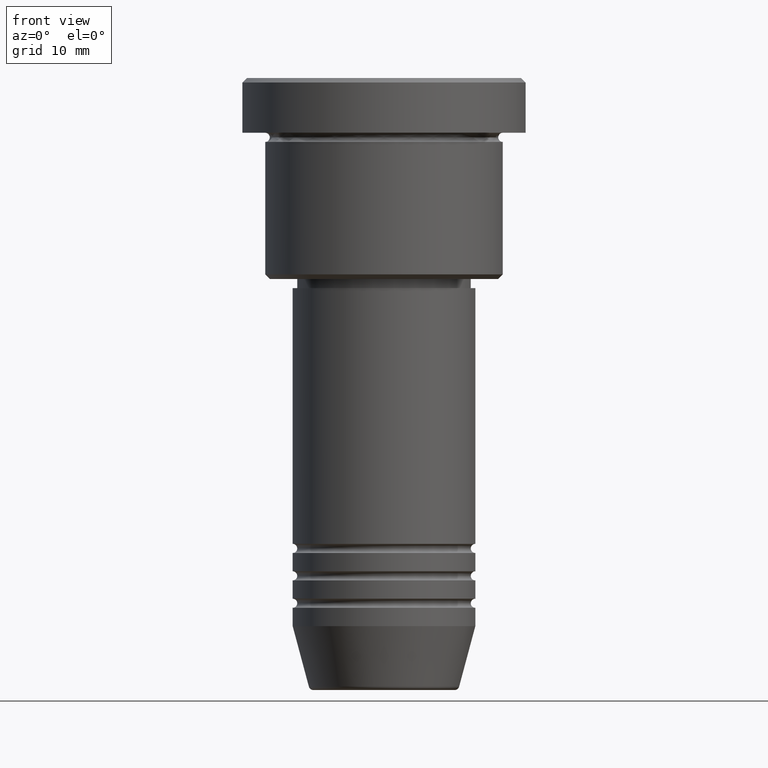
[diagram: clean part render]
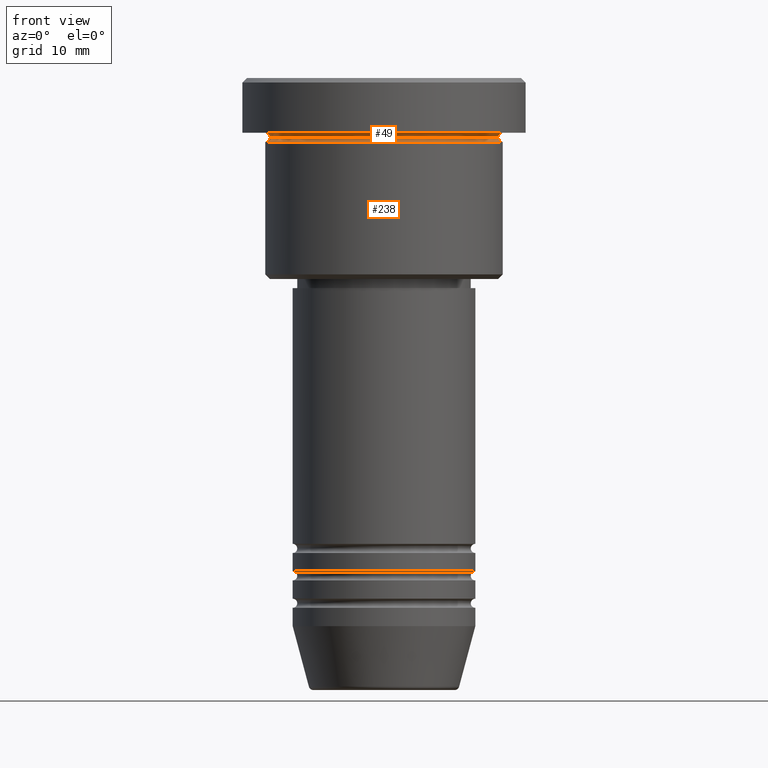
[diagram: same view with one multi-face feature highlighted, each face labeled with its STEP entity id]
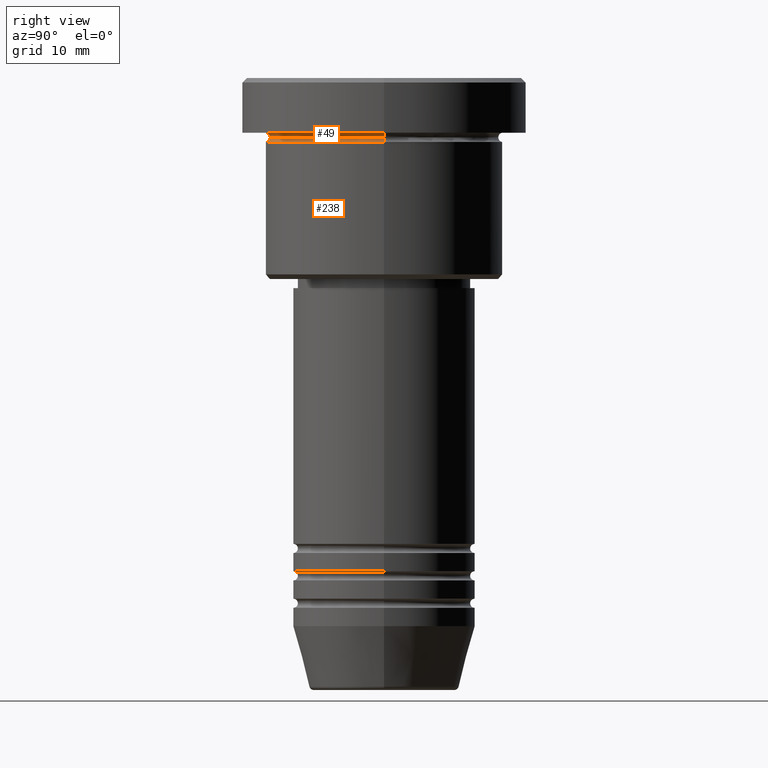
[diagram: same view with one multi-face feature highlighted, each face labeled with its STEP entity id]
A machine part, front view. The highlighted faces form ONE feature: a constant-radius fillet chain: 2 tangent blend faces with common blend radius 0.5 mm. The faces share edges in the B-rep.
A second angle (right view) of the same feature is appended — it is thin or edge-on in the first view.
Their STEP definitions:
[1] entity #49 (Torus):
#19 = CIRCLE ( 'NONE', #325, 0.5000000000000004441 ) ;
#30 = DIRECTION ( 'NONE',  ( -1.000000000000000000, 0.000000000000000000, 0.000000000000000000 ) ) ;
#41 = EDGE_CURVE ( 'NONE', #679, #348, #215, .T. ) ;
#49 = ADVANCED_FACE ( 'NONE', ( #750 ), #1029, .F. ) ;
#98 = DIRECTION ( 'NONE',  ( -0.000000000000000000, -0.000000000000000000, 1.000000000000000000 ) ) ;
#173 = DIRECTION ( 'NONE',  ( 1.000000000000000000, 0.000000000000000000, 0.000000000000000000 ) ) ;
#185 = DIRECTION ( 'NONE',  ( -1.224646799147353207E-16, 1.000000000000000000, 0.000000000000000000 ) ) ;
#194 = CARTESIAN_POINT ( 'NONE',  ( -13.00000000000000000, 0.000000000000000000, -5.999999999999994671 ) ) ;
#198 = CARTESIAN_POINT ( 'NONE',  ( 13.00000000000000000, 1.592040838891559095E-15, -6.499999999999995559 ) ) ;
#215 = CIRCLE ( 'NONE', #374, 0.5000000000000004441 ) ;
#226 = EDGE_LOOP ( 'NONE', ( #512, #853, #782, #830 ) ) ;
#241 = VERTEX_POINT ( 'NONE', #692 ) ;
#280 = DIRECTION ( 'NONE',  ( -1.000000000000000000, -1.224646799147353454E-16, 0.000000000000000000 ) ) ;
#288 = CIRCLE ( 'NONE', #514, 12.49999999999999822 ) ;
#292 = CARTESIAN_POINT ( 'NONE',  ( -12.49999999999999822, 1.561424668912875308E-15, -6.499999999999995559 ) ) ;
#317 = CARTESIAN_POINT ( 'NONE',  ( 0.000000000000000000, 0.000000000000000000, -6.499999999999995559 ) ) ;
#325 = AXIS2_PLACEMENT_3D ( 'NONE', #198, #185, #280 ) ;
#342 = VERTEX_POINT ( 'NONE', #921 ) ;
#348 = VERTEX_POINT ( 'NONE', #194 ) ;
#374 = AXIS2_PLACEMENT_3D ( 'NONE', #953, #594, #676 ) ;
#486 = EDGE_CURVE ( 'NONE', #679, #342, #288, .T. ) ;
#512 = ORIENTED_EDGE ( 'NONE', *, *, #486, .T. ) ;
#514 = AXIS2_PLACEMENT_3D ( 'NONE', #1000, #98, #173 ) ;
#530 = EDGE_CURVE ( 'NONE', #342, #241, #19, .T. ) ;
#594 = DIRECTION ( 'NONE',  ( -0.000000000000000000, -1.000000000000000000, -0.000000000000000000 ) ) ;
#598 = EDGE_CURVE ( 'NONE', #348, #241, #1123, .T. ) ;
#665 = AXIS2_PLACEMENT_3D ( 'NONE', #317, #670, #30 ) ;
#670 = DIRECTION ( 'NONE',  ( 0.000000000000000000, 0.000000000000000000, -1.000000000000000000 ) ) ;
#676 = DIRECTION ( 'NONE',  ( 0.000000000000000000, 0.000000000000000000, -1.000000000000000000 ) ) ;
#679 = VERTEX_POINT ( 'NONE', #292 ) ;
#692 = CARTESIAN_POINT ( 'NONE',  ( 13.00000000000000000, 1.592040838891559095E-15, -5.999999999999994671 ) ) ;
#725 = DIRECTION ( 'NONE',  ( -0.000000000000000000, -0.000000000000000000, 1.000000000000000000 ) ) ;
#731 = CARTESIAN_POINT ( 'NONE',  ( 0.000000000000000000, 0.000000000000000000, -5.999999999999995559 ) ) ;
#736 = DIRECTION ( 'NONE',  ( -1.000000000000000000, 0.000000000000000000, 0.000000000000000000 ) ) ;
#750 = FACE_OUTER_BOUND ( 'NONE', #226, .T. ) ;
#753 = AXIS2_PLACEMENT_3D ( 'NONE', #731, #725, #736 ) ;
#782 = ORIENTED_EDGE ( 'NONE', *, *, #598, .F. ) ;
#830 = ORIENTED_EDGE ( 'NONE', *, *, #41, .F. ) ;
#853 = ORIENTED_EDGE ( 'NONE', *, *, #530, .T. ) ;
#921 = CARTESIAN_POINT ( 'NONE',  ( 12.49999999999999822, 0.000000000000000000, -6.499999999999995559 ) ) ;
#953 = CARTESIAN_POINT ( 'NONE',  ( -13.00000000000000000, 0.000000000000000000, -6.499999999999995559 ) ) ;
#1000 = CARTESIAN_POINT ( 'NONE',  ( 0.000000000000000000, 0.000000000000000000, -6.499999999999995559 ) ) ;
#1029 = TOROIDAL_SURFACE ( 'NONE', #665, 13.00000000000000000, 0.5000000000000000000 ) ;
#1123 = CIRCLE ( 'NONE', #753, 13.00000000000000000 ) ;
[2] entity #238 (Torus):
#20 = CARTESIAN_POINT ( 'NONE',  ( 13.00000000000000000, 0.000000000000000000, -6.499999999999995559 ) ) ;
#47 = DIRECTION ( 'NONE',  ( -1.000000000000000000, 1.224646799147353454E-16, 0.000000000000000000 ) ) ;
#56 = FACE_OUTER_BOUND ( 'NONE', #388, .T. ) ;
#57 = AXIS2_PLACEMENT_3D ( 'NONE', #258, #976, #163 ) ;
#89 = VERTEX_POINT ( 'NONE', #580 ) ;
#98 = DIRECTION ( 'NONE',  ( -0.000000000000000000, -0.000000000000000000, 1.000000000000000000 ) ) ;
#99 = DIRECTION ( 'NONE',  ( 0.000000000000000000, 0.000000000000000000, -1.000000000000000000 ) ) ;
#163 = DIRECTION ( 'NONE',  ( 1.000000000000000000, 0.000000000000000000, 0.000000000000000000 ) ) ;
#173 = DIRECTION ( 'NONE',  ( 1.000000000000000000, 0.000000000000000000, 0.000000000000000000 ) ) ;
#190 = CIRCLE ( 'NONE', #640, 0.5000000000000004441 ) ;
#212 = AXIS2_PLACEMENT_3D ( 'NONE', #663, #413, #1128 ) ;
#238 = ADVANCED_FACE ( 'NONE', ( #56 ), #990, .F. ) ;
#258 = CARTESIAN_POINT ( 'NONE',  ( 0.000000000000000000, 0.000000000000000000, -6.499999999999995559 ) ) ;
#273 = CARTESIAN_POINT ( 'NONE',  ( -13.00000000000000000, 1.592040838891559095E-15, -6.999999999999995559 ) ) ;
#286 = EDGE_CURVE ( 'NONE', #342, #89, #190, .T. ) ;
#288 = CIRCLE ( 'NONE', #514, 12.49999999999999822 ) ;
#292 = CARTESIAN_POINT ( 'NONE',  ( -12.49999999999999822, 1.561424668912875308E-15, -6.499999999999995559 ) ) ;
#342 = VERTEX_POINT ( 'NONE', #921 ) ;
#376 = EDGE_CURVE ( 'NONE', #506, #89, #796, .T. ) ;
#382 = CIRCLE ( 'NONE', #733, 0.5000000000000004441 ) ;
#388 = EDGE_LOOP ( 'NONE', ( #755, #691, #974, #443 ) ) ;
#413 = DIRECTION ( 'NONE',  ( -0.000000000000000000, -0.000000000000000000, 1.000000000000000000 ) ) ;
#425 = DIRECTION ( 'NONE',  ( 1.224646799147353207E-16, 1.000000000000000000, 0.000000000000000000 ) ) ;
#443 = ORIENTED_EDGE ( 'NONE', *, *, #286, .F. ) ;
#486 = EDGE_CURVE ( 'NONE', #679, #342, #288, .T. ) ;
#506 = VERTEX_POINT ( 'NONE', #273 ) ;
#514 = AXIS2_PLACEMENT_3D ( 'NONE', #1000, #98, #173 ) ;
#580 = CARTESIAN_POINT ( 'NONE',  ( 13.00000000000000000, 0.000000000000000000, -6.999999999999995559 ) ) ;
#640 = AXIS2_PLACEMENT_3D ( 'NONE', #20, #822, #99 ) ;
#663 = CARTESIAN_POINT ( 'NONE',  ( 0.000000000000000000, 0.000000000000000000, -6.999999999999995559 ) ) ;
#679 = VERTEX_POINT ( 'NONE', #292 ) ;
#691 = ORIENTED_EDGE ( 'NONE', *, *, #793, .T. ) ;
#733 = AXIS2_PLACEMENT_3D ( 'NONE', #1067, #425, #47 ) ;
#755 = ORIENTED_EDGE ( 'NONE', *, *, #486, .F. ) ;
#793 = EDGE_CURVE ( 'NONE', #679, #506, #382, .T. ) ;
#796 = CIRCLE ( 'NONE', #212, 13.00000000000000000 ) ;
#822 = DIRECTION ( 'NONE',  ( 0.000000000000000000, -1.000000000000000000, 0.000000000000000000 ) ) ;
#921 = CARTESIAN_POINT ( 'NONE',  ( 12.49999999999999822, 0.000000000000000000, -6.499999999999995559 ) ) ;
#974 = ORIENTED_EDGE ( 'NONE', *, *, #376, .T. ) ;
#976 = DIRECTION ( 'NONE',  ( -0.000000000000000000, -0.000000000000000000, 1.000000000000000000 ) ) ;
#990 = TOROIDAL_SURFACE ( 'NONE', #57, 13.00000000000000000, 0.5000000000000000000 ) ;
#1000 = CARTESIAN_POINT ( 'NONE',  ( 0.000000000000000000, 0.000000000000000000, -6.499999999999995559 ) ) ;
#1067 = CARTESIAN_POINT ( 'NONE',  ( -13.00000000000000000, 1.592040838891559095E-15, -6.499999999999995559 ) ) ;
#1128 = DIRECTION ( 'NONE',  ( 1.000000000000000000, 0.000000000000000000, 0.000000000000000000 ) ) ;